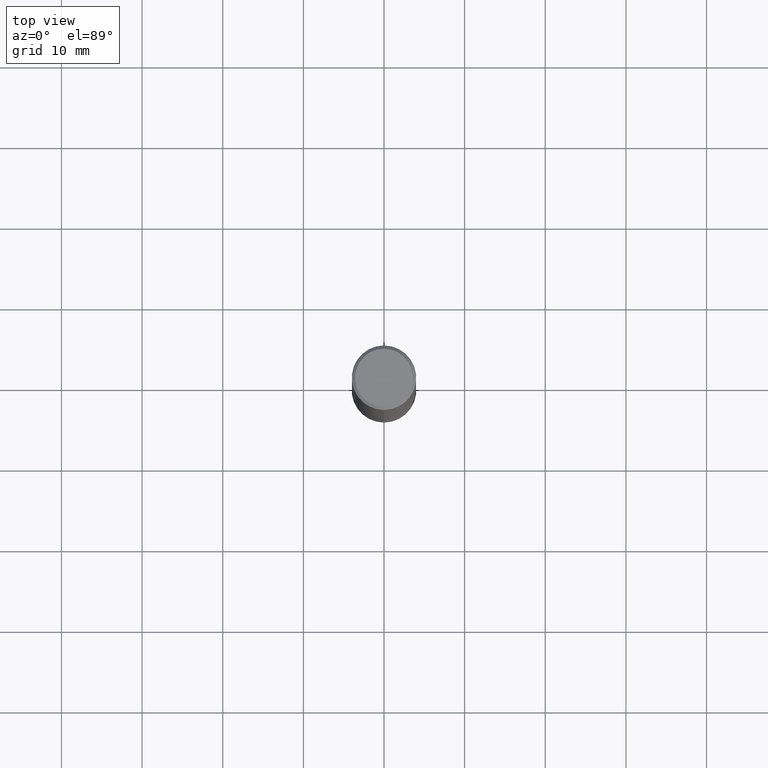
[diagram: clean part render]
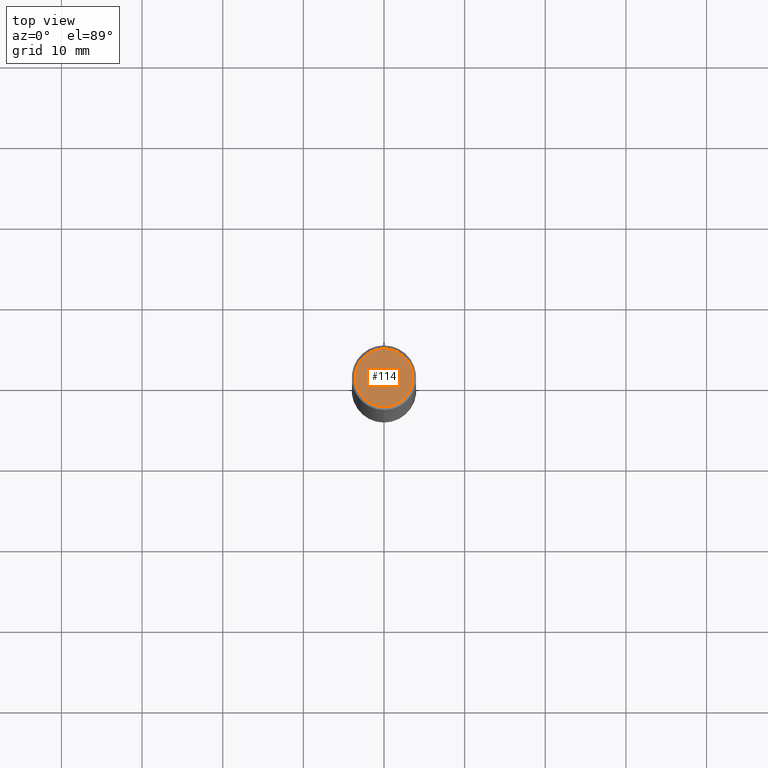
[diagram: same view with one face highlighted and labeled with its STEP entity id]
A machine part, top view. The second image highlights one B-rep face of the part: STEP entity #114.
In plain terms, the highlighted planar face has unit normal (-0, 0, 1).
Its self-contained STEP definition (entity closure, byte-faithful):
#114=ADVANCED_FACE('',(#260),#261,.T.);
#140=VERTEX_POINT('',#294);
#148=EDGE_CURVE('',#140,#152,#302,.T.);
#152=VERTEX_POINT('',#306);
#180=EDGE_CURVE('',#152,#140,#338,.T.);
#260=FACE_OUTER_BOUND('',#422,.T.);
#261=PLANE('',#423);
#294=CARTESIAN_POINT('',(4.40858287376056E-016,-3.6,0.0));
#302=CIRCLE('',#476,3.6);
#306=CARTESIAN_POINT('',(0.0,3.6,0.0));
#338=CIRCLE('',#521,3.6);
#422=EDGE_LOOP('',(#595,#596));
#423=AXIS2_PLACEMENT_3D('',#597,#598,#599);
#476=AXIS2_PLACEMENT_3D('',#666,#667,#668);
#521=AXIS2_PLACEMENT_3D('',#707,#708,#709);
#595=ORIENTED_EDGE('',*,*,#180,.F.);
#596=ORIENTED_EDGE('',*,*,#148,.F.);
#597=CARTESIAN_POINT('',(0.0,1.8,0.0));
#598=DIRECTION('',(-0.0,0.0,1.0));
#599=DIRECTION('',(0.0,-1.0,0.0));
#666=CARTESIAN_POINT('',(0.0,0.0,0.0));
#667=DIRECTION('',(0.0,0.0,-1.0));
#668=DIRECTION('',(0.0,1.0,0.0));
#707=CARTESIAN_POINT('',(0.0,0.0,0.0));
#708=DIRECTION('',(0.0,0.0,-1.0));
#709=DIRECTION('',(0.0,1.0,0.0));